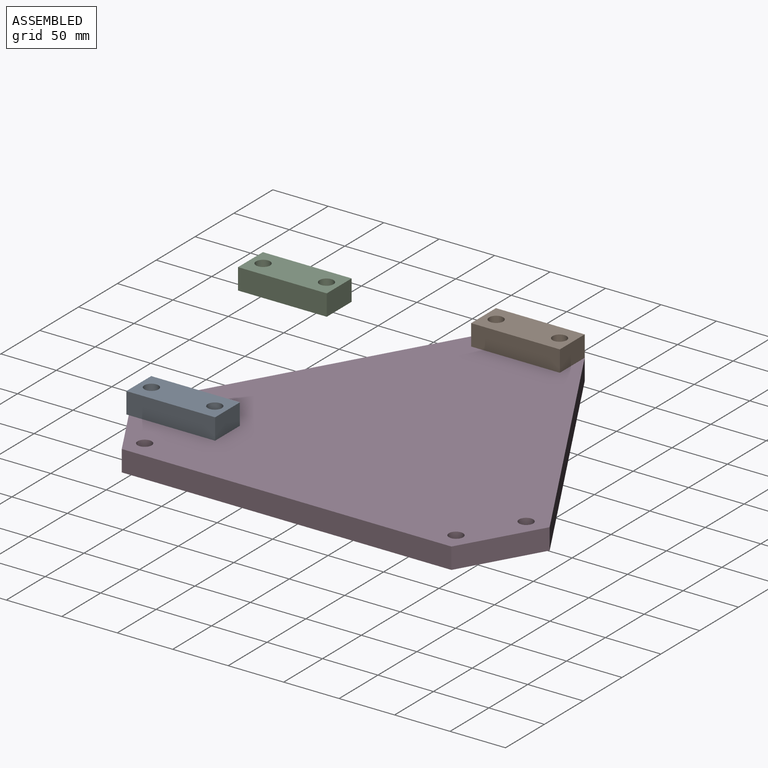
[diagram: assembled view]
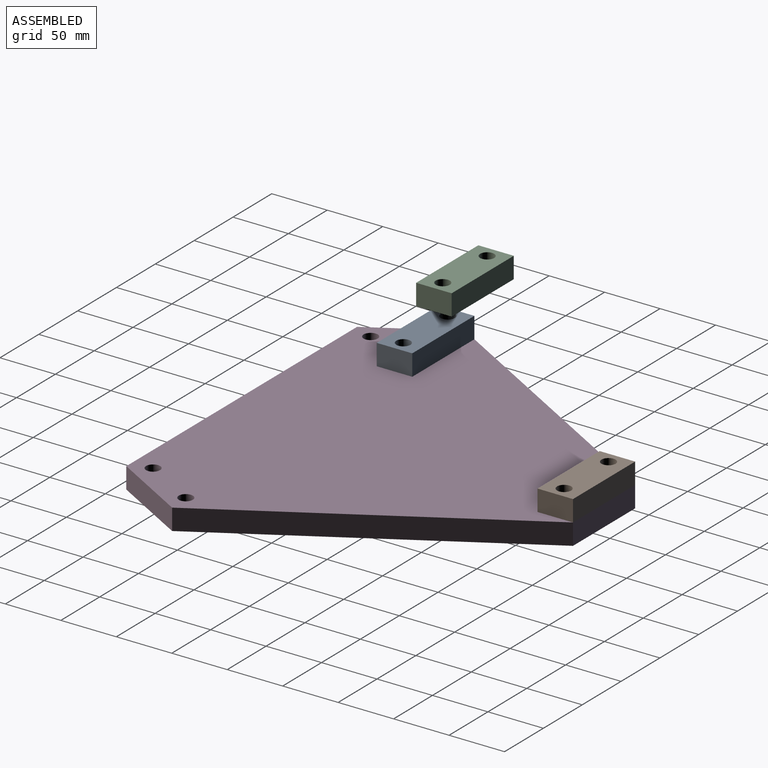
[diagram: assembled view, second angle]
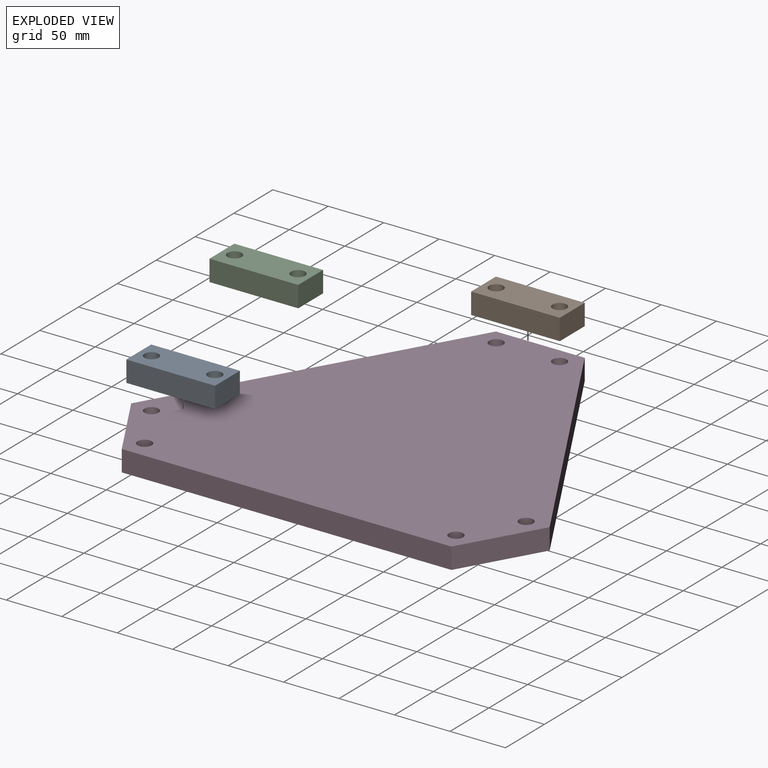
[diagram: exploded view]
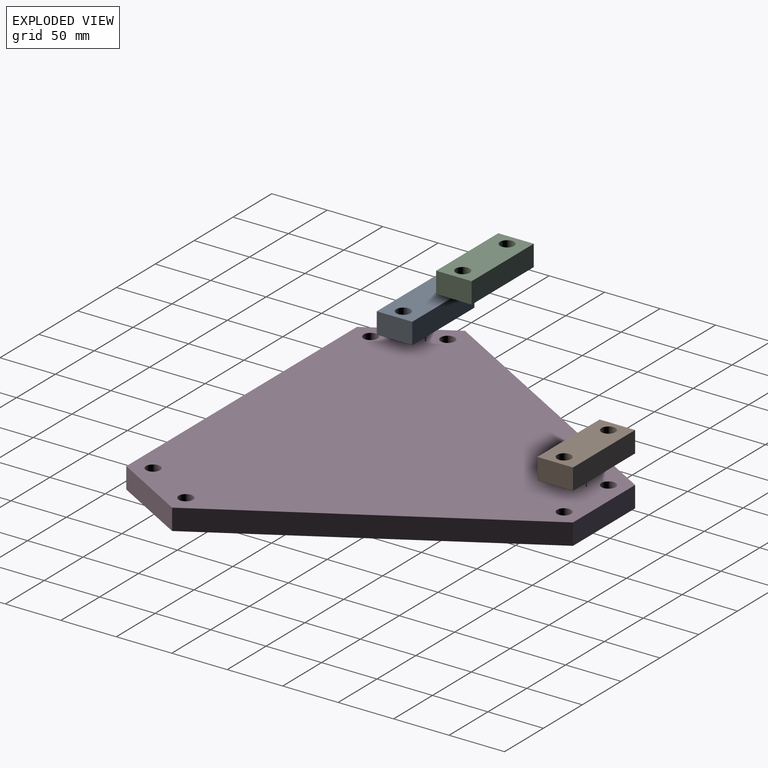
[diagram: exploded view, second angle]
ASSEMBLY  parts=4 mates=3
PART A: 8 faces, bbox 80x32x19.1 mm
  f0: plane 80x19.05mm, normal (0,1,0), area 1524mm2, adj f1,f5,f6,f7
  f1: plane 32x19.05mm, normal (-1,0,0), area 609.6mm2, adj f0,f2,f6,f7
  f2: plane 80x19.05mm, normal (0,-1,0), area 1524mm2, adj f1,f5,f6,f7
  f3: cylinder r=6.35mm len=19.05mm, axis (0,0,-1), area 760.1mm2, adj f6,f7
  f4: cylinder r=6.35mm len=19.05mm, axis (0,0,-1), area 760.1mm2, adj f6,f7
  f5: plane 32x19.05mm, normal (1,0,0), area 609.6mm2, adj f0,f2,f6,f7
  f6: plane 80x32mm, normal (0,0,1), area 2306.6mm2, adj f0,f1,f2,f3,f4,f5
  f7: plane 80x32mm, normal (0,0,-1), area 2306.6mm2, adj f0,f1,f2,f3,f4,f5
PART B: same geometry as A
PART C: same geometry as A
PART D: 14 faces, bbox 377.2x326.7x19.1 mm
  f0: plane 257.37x148.59mm, normal (-0.87,0.5,0), area 5661.3mm2, adj f3,f4,f12,f13
  f1: plane 297.18x19.05mm, normal (0,-1,0), area 5661.3mm2, adj f3,f4,f11,f12
  f2: plane 257.37x148.59mm, normal (0.87,0.5,0), area 5661.3mm2, adj f3,f4,f11,f13
  f3: plane 377.19x326.66mm, normal (0,0,1), area 81437.5mm2, adj f0,f1,f2,f5,f6,f7,f8,f9
  f4: plane 377.19x326.66mm, normal (0,0,-1), area 81437.5mm2, adj f0,f1,f2,f5,f6,f7,f8,f9
  f5: cylinder r=6.35mm len=19.05mm, axis (0,0,-1), area 760.1mm2, adj f3,f4
  f6: cylinder r=6.35mm len=19.05mm, axis (0,0,-1), area 760.1mm2, adj f3,f4
  f7: cylinder r=6.35mm len=19.05mm, axis (0,0,-1), area 760.1mm2, adj f3,f4
  f8: cylinder r=6.35mm len=19.05mm, axis (0,0,-1), area 760.1mm2, adj f3,f4
  f9: cylinder r=6.35mm len=19.05mm, axis (0,0,-1), area 760.1mm2, adj f3,f4
  f10: cylinder r=6.35mm len=19.05mm, axis (0,0,-1), area 760.1mm2, adj f3,f4
  f11: plane 69.29x40.01mm, normal (0.87,-0.5,0), area 1524.2mm2, adj f1,f2,f3,f4
  f12: plane 69.29x40.01mm, normal (-0.87,-0.5,0), area 1524.2mm2, adj f0,f1,f3,f4
  f13: plane 80.01x19.05mm, normal (0,1,0), area 1524.2mm2, adj f0,f2,f3,f4
PLACE A t=(-140.45,-64.59,0)mm
PLACE B t=(0,178.67,0)mm
PLACE C t=(-89.58,6.55,87.41)mm
PLACE D t=(0,-131.98,-19.05)mm
MATE fastened A.f3 <-> D.f6  axis (0,0,-1) through (-169.02,-64.59,0)mm
MATE slider B.f3 <-> D.f9  axis (0,0,1) through (-28.58,178.67,19.05)mm
MATE fastened B.f3 <-> D.f9  axis (0,0,-1) through (-28.58,178.67,0)mm
